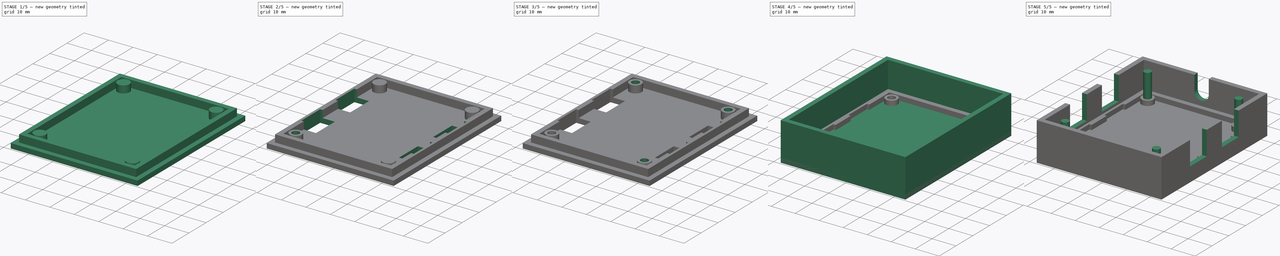
[diagram: build sequence overview — one tinted view per stage of 5, left to right]
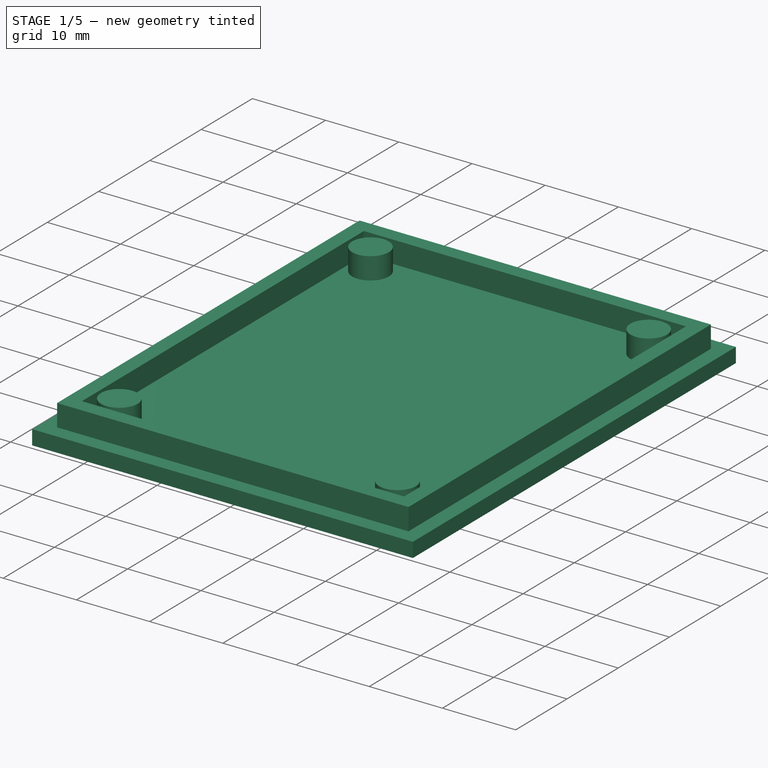
[diagram: stage 1 of 5 — iso view after this stage's code; geometry added in this stage tinted green]
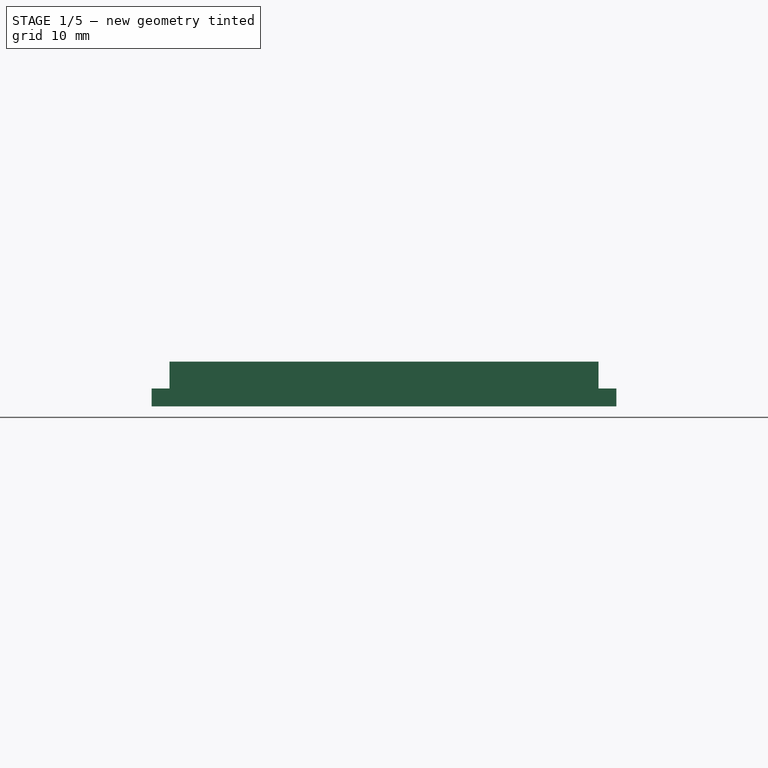
[diagram: stage 1 of 5 — front view after this stage's code; geometry added in this stage tinted green]
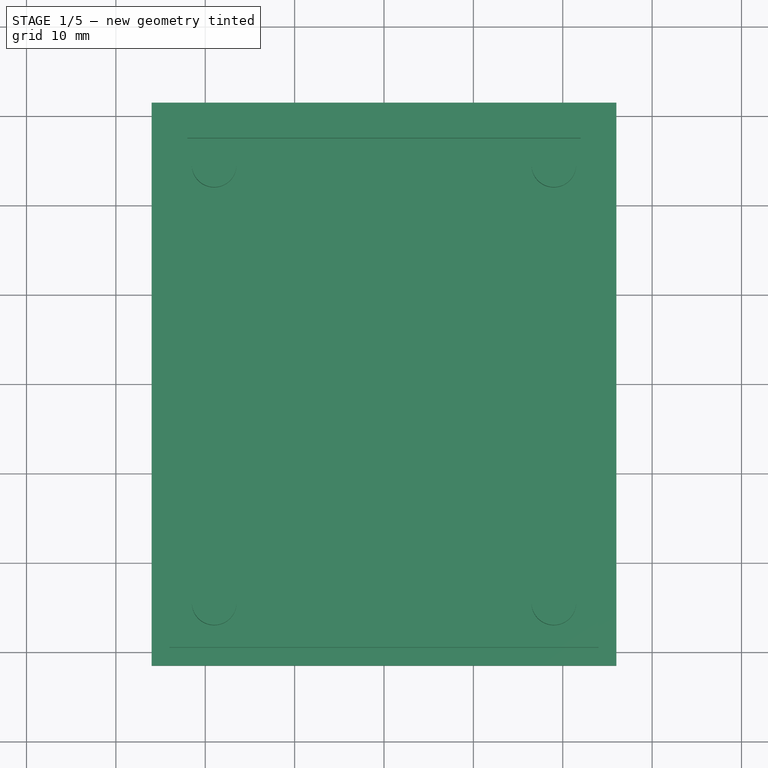
[diagram: stage 1 of 5 — top view after this stage's code; geometry added in this stage tinted green]
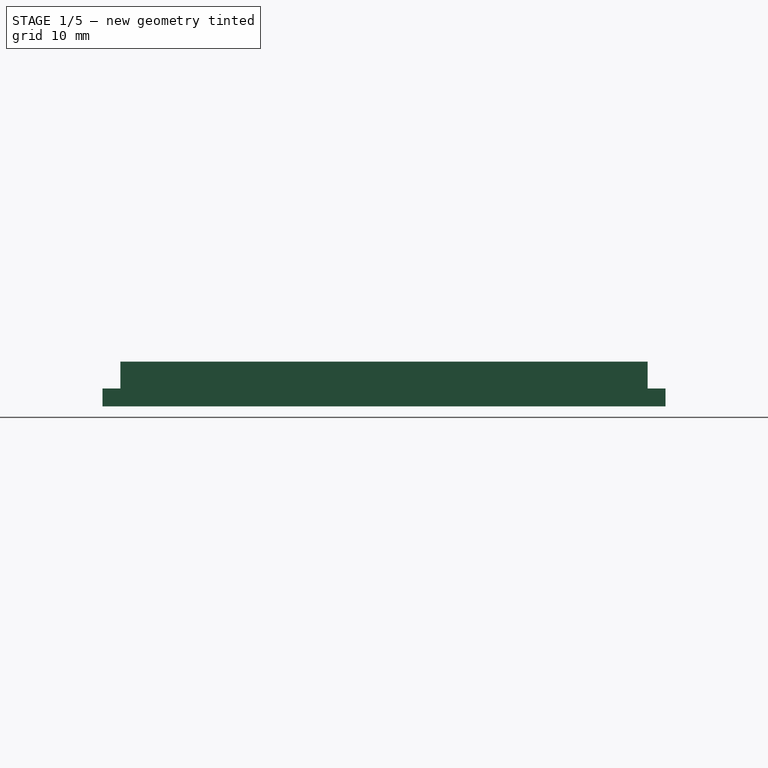
[diagram: stage 1 of 5 — right view after this stage's code; geometry added in this stage tinted green]
FCSTD DOCUMENT  (FreeCAD 0.19R23578 (Git))
Label: breakout_box
License: All rights reserved
LicenseURL: http://en.wikipedia.org/wiki/All_rights_reserved
objects: Sketcher::SketchObject×13, PartDesign::Pocket×7, PartDesign::Pad×6, PartDesign::Hole×6, PartDesign::Body×2
note: 53 computed .brp shape members not serialized (recipe doc carries the construction recipe); baked Part::Feature solids carry a one-line shape summary decoded from their .brp

FEATURE [PartDesign::Body] Body
  Group = -> [Sketch,Pad,Sketch001,Pocket,Sketch002,Pad001,Sketch003,Pocket001,Sketch004,Pocket002,Sketch005,Pocket003,Sketch006,Pocket004,Sketch007,Pad002]
  Origin = -> Origin
  Tip = -> Pad002
FEATURE [Sketcher::SketchObject] Sketch008
  MapMode = 5
  Support = -> [XY_Plane001]
  sketch-geometry (4):
    g0: LineSegment StartX=-26 StartY=31.5 StartZ=0 EndX=26 EndY=31.5 EndZ=0
    g1: LineSegment StartX=26 StartY=31.5 StartZ=0 EndX=26 EndY=-31.5 EndZ=0
    g2: LineSegment StartX=26 StartY=-31.5 StartZ=0 EndX=-26 EndY=-31.5 EndZ=0
    g3: LineSegment StartX=-26 StartY=-31.5 StartZ=0 EndX=-26 EndY=31.5 EndZ=0
  constraints (10):
    c: Coincident(g0,g1)
    c: Coincident(g1,g2)
    c: Coincident(g2,g3)
    c: Coincident(g3,g0)
    c: Horizontal(g2)
    c: Vertical(g1)
    c: DistanceX(g0,g0) = 52
    c: DistanceY(g3,g3) = 63
    c: Symmetric(g0,g0,g-2)
    c: Symmetric(g0,g2,g-1)
FEATURE [PartDesign::Pad] Pad003
  Direction = (1,1,1)
  Length = 2
  Length2 = 100
  Profile = -> Sketch008
  Type = 0
FEATURE [Sketcher::SketchObject] Sketch009
  ExternalGeometry = -> [Pad003]
  MapMode = 5
  Support = -> [XY_Plane001]
  sketch-geometry (4):
    g0: LineSegment StartX=-24 StartY=29.5 StartZ=0 EndX=24 EndY=29.5 EndZ=0
    g1: LineSegment StartX=24 StartY=29.5 StartZ=0 EndX=24 EndY=-29.5 EndZ=0
    g2: LineSegment StartX=24 StartY=-29.5 StartZ=0 EndX=-24 EndY=-29.5 EndZ=0
    g3: LineSegment StartX=-24 StartY=-29.5 StartZ=0 EndX=-24 EndY=29.5 EndZ=0
  constraints (12):
    c: Coincident(g0,g1)
    c: Coincident(g1,g2)
    c: Coincident(g2,g3)
    c: Coincident(g3,g0)
    c: Horizontal(g0)
    c: Horizontal(g2)
    c: Vertical(g1)
    c: Vertical(g3)
    c: DistanceY(g0,g-4) = 2
    c: DistanceY(g-6,g1) = 2
    c: DistanceX(g-6,g2) = 2
    c: DistanceX(g1,g-6) = 2
FEATURE [PartDesign::Pad] Pad004
  BaseFeature = -> Pad003
  Direction = (0,0,1)
  Length = 5
  Length2 = 100
  Profile = -> Sketch009
  Type = 0
FEATURE [Sketcher::SketchObject] Sketch010
  ExternalGeometry = -> [Pad004]
  MapMode = 5
  Placement = pos=(0,0,5) rot=(0,0,1;0rad)
  Support = -> [Pad004]
  sketch-geometry (4):
    g0: LineSegment StartX=-22 StartY=27.5 StartZ=0 EndX=22 EndY=27.5 EndZ=0
    g1: LineSegment StartX=22 StartY=27.5 StartZ=0 EndX=22 EndY=-27.5 EndZ=0
    g2: LineSegment StartX=22 StartY=-27.5 StartZ=0 EndX=-22 EndY=-27.5 EndZ=0
    g3: LineSegment StartX=-22 StartY=-27.5 StartZ=0 EndX=-22 EndY=27.5 EndZ=0
  constraints (12):
    c: Coincident(g0,g1)
    c: Coincident(g1,g2)
    c: Coincident(g2,g3)
    c: Coincident(g3,g0)
    c: Horizontal(g0)
    c: Horizontal(g2)
    c: Vertical(g1)
    c: Vertical(g3)
    c: DistanceY(g-6,g2) = 2
    c: DistanceY(g0,g-4) = 2
    c: DistanceX(g-4,g0) = 2
    c: DistanceX(g0,g-5) = 2
FEATURE [PartDesign::Pocket] Pocket005
  BaseFeature = -> Pad004
  Length = 3
  Length2 = 100
  Profile = -> Sketch010
  Type = 0
FEATURE [Sketcher::SketchObject] Sketch011
  ExternalGeometry = -> [Pocket005]
  MapMode = 5
  Placement = pos=(0,0,2) rot=(0,0,1;0rad)
  Support = -> [Pocket005]
  sketch-geometry (4):
    g0: Circle CenterX=-19 CenterY=24.5 CenterZ=0 NormalX=0 NormalY=0 NormalZ=1 AngleXU=0 Radius=2.5
    g1: Circle CenterX=19 CenterY=24.5 CenterZ=0 NormalX=0 NormalY=0 NormalZ=1 AngleXU=0 Radius=2.5
    g2: Circle CenterX=19 CenterY=-24.5 CenterZ=0 NormalX=0 NormalY=0 NormalZ=1 AngleXU=0 Radius=2.5
    g3: Circle CenterX=-19 CenterY=-24.5 CenterZ=0 NormalX=0 NormalY=0 NormalZ=1 AngleXU=0 Radius=2.5
  constraints (12):
    c: Diameter(g0) = 5
    c: Diameter(g1) = 5
    c: Diameter(g2) = 5
    c: Diameter(g3) = 5
    c: DistanceY(g0,g-6) = 5
    c: DistanceY(g1,g-4) = 5
    c: DistanceY(g-5,g2) = 5
    c: DistanceY(g-6,g3) = 5
    c: DistanceX(g-6,g0) = 5
    c: DistanceX(g1,g-4) = 5
    c: DistanceX(g2,g-5) = 5
    c: DistanceX(g-6,g3) = 5
FEATURE [PartDesign::Pad] Pad005
  BaseFeature = -> Pocket005
  Direction = (1,1,1)
  Length = 3
  Length2 = 100
  Profile = -> Sketch011
  Type = 0
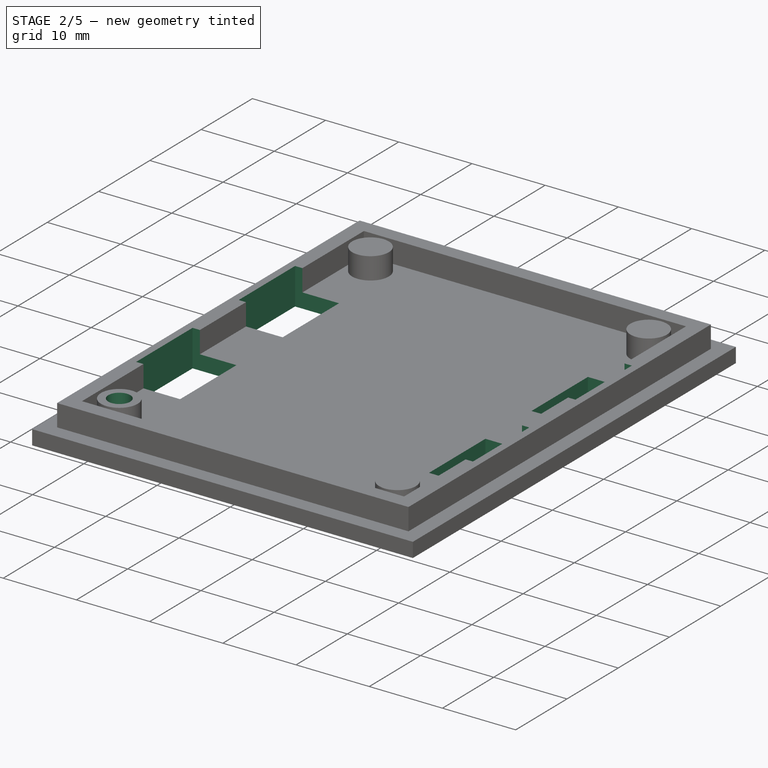
[diagram: stage 2 of 5 — iso view after this stage's code; geometry added in this stage tinted green]
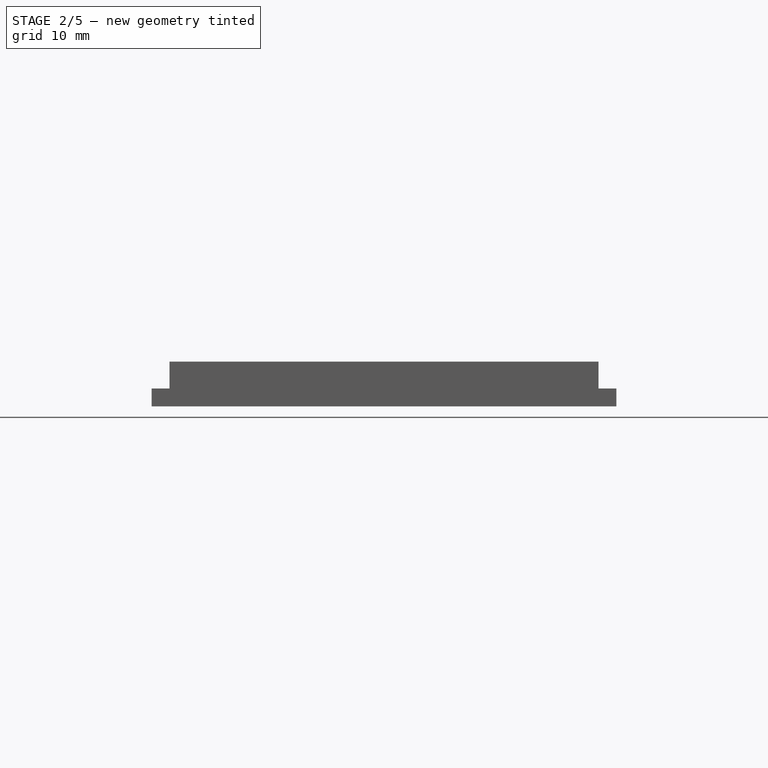
[diagram: stage 2 of 5 — front view after this stage's code; geometry added in this stage tinted green]
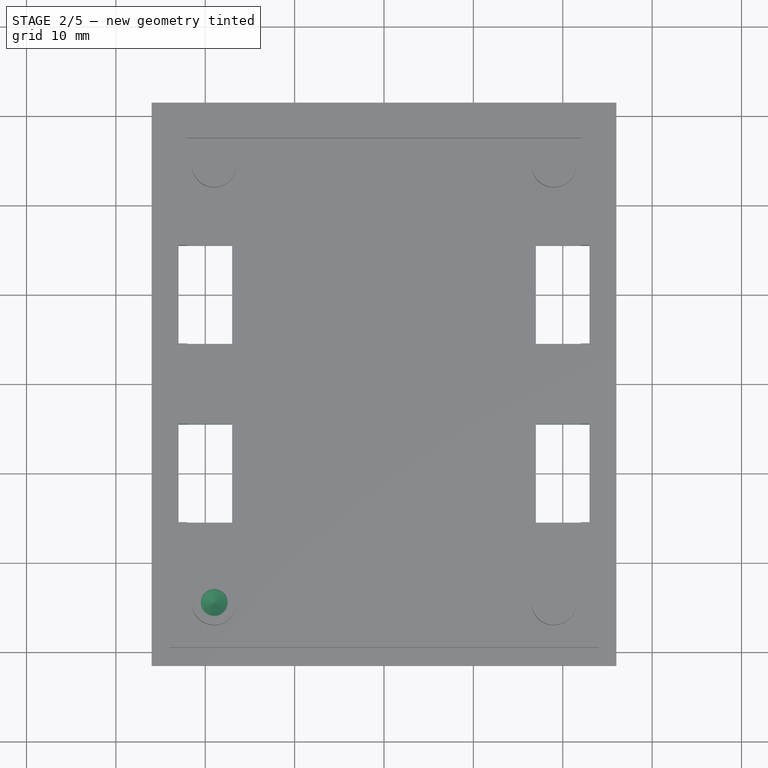
[diagram: stage 2 of 5 — top view after this stage's code; geometry added in this stage tinted green]
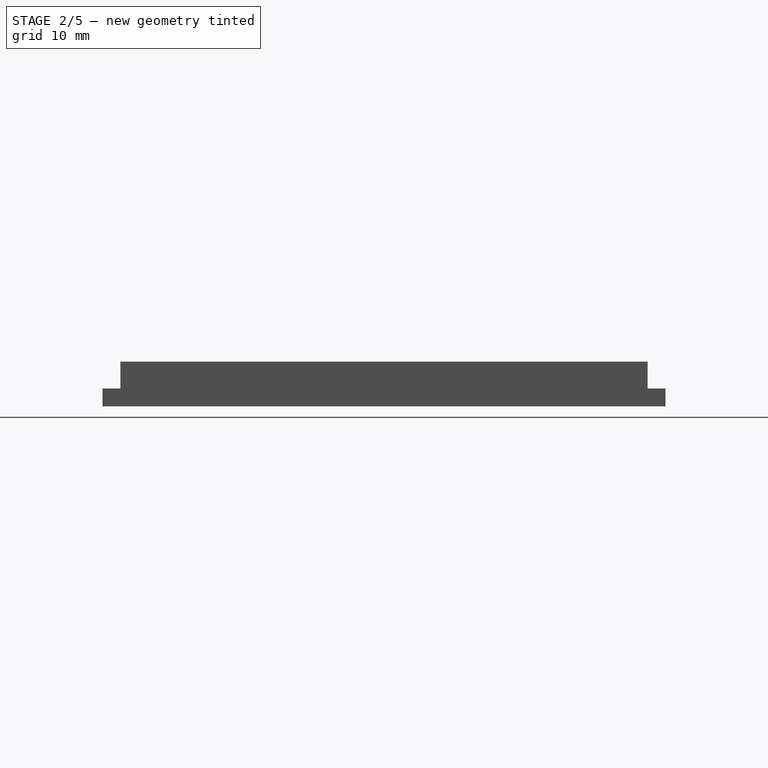
[diagram: stage 2 of 5 — right view after this stage's code; geometry added in this stage tinted green]
FEATURE [PartDesign::Hole] Hole
  BaseFeature = -> Pad005
  Depth = 3
  DepthType = 0
  Diameter = 3
  DrillPoint = 1
  DrillPointAngle = 118
  HoleCutCountersinkAngle = 90
  HoleCutDepth = 0
  HoleCutDiameter = 0
  HoleCutType = 0
  ModelActualThread = false
  Profile = -> Pad005 [Face23]
  Tapered = false
  TaperedAngle = 90
  ThreadAngle = 0
  ThreadClass = 0
  ThreadCutOffInner = 0
  ThreadCutOffOuter = 0
  ThreadDirection = 0
  ThreadFit = 0
  ThreadPitch = 0
  ThreadSize = 0
  ThreadType = 0
  Threaded = false
FEATURE [PartDesign::Hole] Hole001
  BaseFeature = -> Hole
  Depth = 3
  DepthType = 0
  Diameter = 3
  DrillPoint = 1
  DrillPointAngle = 118
  HoleCutCountersinkAngle = 90
  HoleCutDepth = 0
  HoleCutDiameter = 0
  HoleCutType = 0
  ModelActualThread = false
  Profile = -> Hole [Face12]
  Tapered = false
  TaperedAngle = 90
  ThreadAngle = 0
  ThreadClass = 0
  ThreadCutOffInner = 0
  ThreadCutOffOuter = 0
  ThreadDirection = 0
  ThreadFit = 0
  ThreadPitch = 0
  ThreadSize = 0
  ThreadType = 0
  Threaded = false
FEATURE [PartDesign::Hole] Hole002
  BaseFeature = -> Hole001
  Depth = 3
  DepthType = 0
  Diameter = 3
  DrillPoint = 1
  DrillPointAngle = 118
  HoleCutCountersinkAngle = 90
  HoleCutDepth = 0
  HoleCutDiameter = 0
  HoleCutType = 0
  ModelActualThread = false
  Profile = -> Hole001 [Face12]
  Tapered = false
  TaperedAngle = 90
  ThreadAngle = 0
  ThreadClass = 0
  ThreadCutOffInner = 0
  ThreadCutOffOuter = 0
  ThreadDirection = 0
  ThreadFit = 0
  ThreadPitch = 0
  ThreadSize = 0
  ThreadType = 0
  Threaded = false
FEATURE [Sketcher::SketchObject] Sketch012
  MapMode = 5
  Placement = pos=(0,0,0) rot=(1,0,0;3.14159rad)
  sketch-geometry (16):
    g0: LineSegment StartX=-23 StartY=15.5 StartZ=0 EndX=-17 EndY=15.5 EndZ=0
    g1: LineSegment StartX=-17 StartY=15.5 StartZ=0 EndX=-17 EndY=4.5 EndZ=0
    g2: LineSegment StartX=-17 StartY=4.5 StartZ=0 EndX=-23 EndY=4.5 EndZ=0
    g3: LineSegment StartX=-23 StartY=4.5 StartZ=0 EndX=-23 EndY=15.5 EndZ=0
    g4: LineSegment StartX=17 StartY=15.5 StartZ=0 EndX=23 EndY=15.5 EndZ=0
    g5: LineSegment StartX=23 StartY=15.5 StartZ=0 EndX=23 EndY=4.5 EndZ=0
    g6: LineSegment StartX=23 StartY=4.5 StartZ=0 EndX=17 EndY=4.5 EndZ=0
    g7: LineSegment StartX=17 StartY=4.5 StartZ=0 EndX=17 EndY=15.5 EndZ=0
    g8: LineSegment StartX=-23 StartY=-4.5 StartZ=0 EndX=-17 EndY=-4.5 EndZ=0
    g9: LineSegment StartX=-17 StartY=-4.5 StartZ=0 EndX=-17 EndY=-15.5 EndZ=0
    g10: LineSegment StartX=-17 StartY=-15.5 StartZ=0 EndX=-23 EndY=-15.5 EndZ=0
    g11: LineSegment StartX=-23 StartY=-15.5 StartZ=0 EndX=-23 EndY=-4.5 EndZ=0
    g12: LineSegment StartX=17 StartY=-4.5 StartZ=0 EndX=23 EndY=-4.5 EndZ=0
    g13: LineSegment StartX=23 StartY=-4.5 StartZ=0 EndX=23 EndY=-15.5 EndZ=0
    g14: LineSegment StartX=23 StartY=-15.5 StartZ=0 EndX=17 EndY=-15.5 EndZ=0
    g15: LineSegment StartX=17 StartY=-15.5 StartZ=0 EndX=17 EndY=-4.5 EndZ=0
  constraints (40):
    c: Coincident(g0,g1)
    c: Coincident(g1,g2)
    c: Coincident(g2,g3)
    c: Coincident(g3,g0)
    c: Horizontal(g0)
    c: Horizontal(g2)
    c: Vertical(g1)
    c: Vertical(g3)
    c: Coincident(g4,g5)
    c: Coincident(g5,g6)
    c: Coincident(g6,g7)
    c: Coincident(g7,g4)
    c: Horizontal(g4)
    c: Horizontal(g6)
    c: Vertical(g5)
    c: Vertical(g7)
    c: Coincident(g8,g9)
    c: Coincident(g9,g10)
    c: Coincident(g10,g11)
    c: Coincident(g11,g8)
    c: Horizontal(g8)
    c: Horizontal(g10)
    c: Vertical(g9)
    c: Vertical(g11)
    c: Coincident(g12,g13)
    c: Coincident(g13,g14)
    c: Coincident(g14,g15)
    c: Coincident(g15,g12)
    c: Horizontal(g12)
    c: Horizontal(g14)
    c: Vertical(g13)
    c: Vertical(g15)
    c: DistanceX(g4,g4) = 6
    c: DistanceX(g0,g0) = 6
    c: DistanceX(g8,g8) = 6
    c: DistanceX(g12,g12) = 6
    c: DistanceY(g3,g3) = 11
    c: DistanceY(g5,g5) = 11
    c: DistanceY(g13,g13) = 11
    c: DistanceY(g9,g9) = 11
FEATURE [PartDesign::Pocket] Pocket006
  BaseFeature = -> Hole002
  Length = 10
  Length2 = 100
  Profile = -> Sketch012
  Type = 0
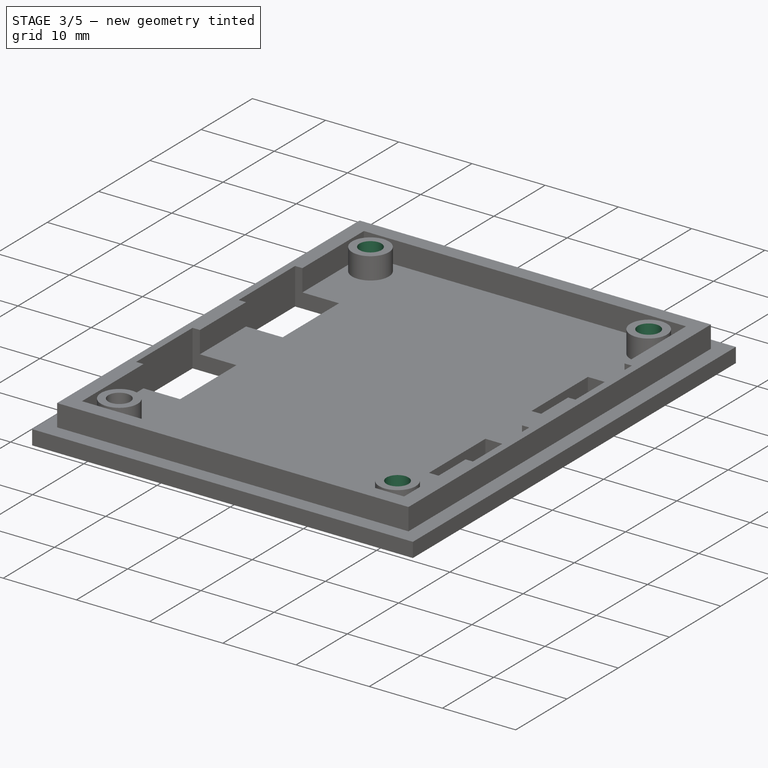
[diagram: stage 3 of 5 — iso view after this stage's code; geometry added in this stage tinted green]
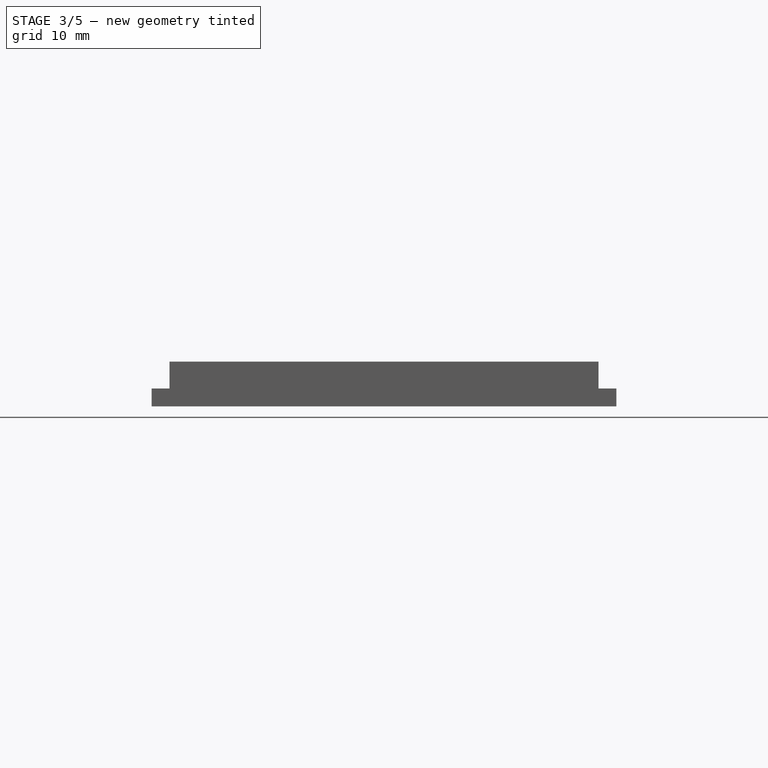
[diagram: stage 3 of 5 — front view after this stage's code; geometry added in this stage tinted green]
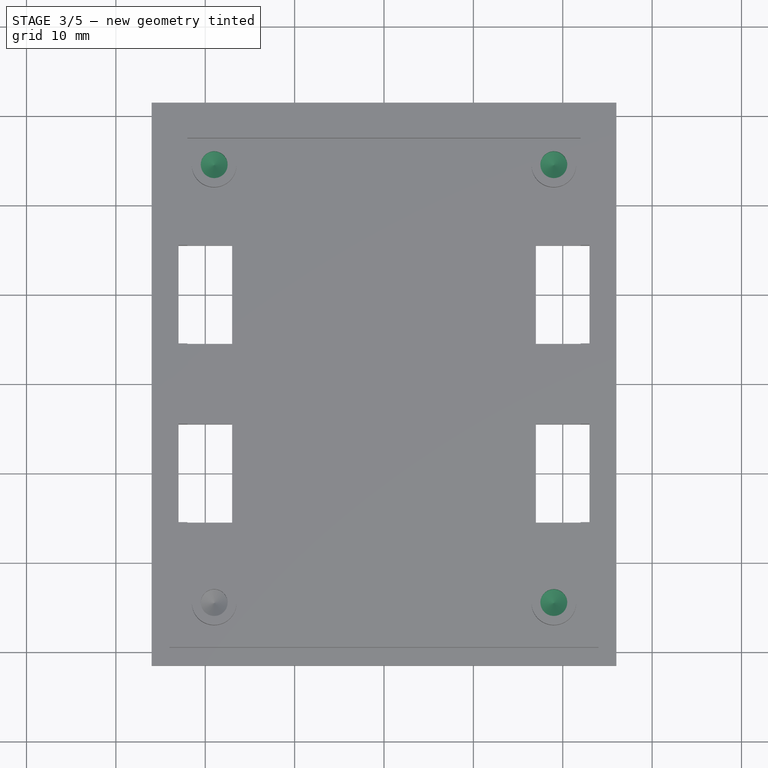
[diagram: stage 3 of 5 — top view after this stage's code; geometry added in this stage tinted green]
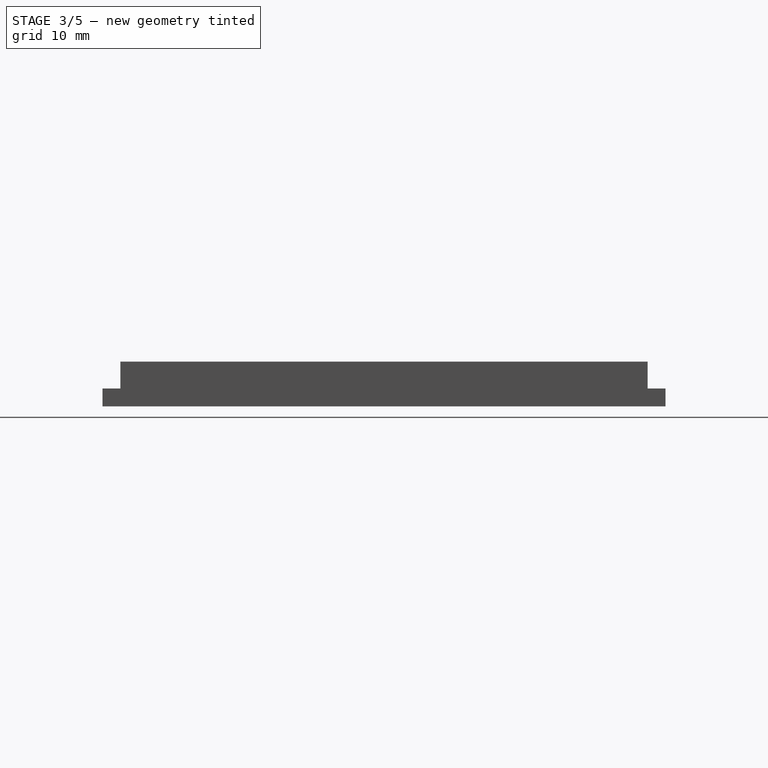
[diagram: stage 3 of 5 — right view after this stage's code; geometry added in this stage tinted green]
FEATURE [PartDesign::Hole] Hole004
  BaseFeature = -> Pocket006
  Depth = 3
  DepthType = 0
  Diameter = 3
  DrillPoint = 1
  DrillPointAngle = 118
  HoleCutCountersinkAngle = 90
  HoleCutDepth = 0
  HoleCutDiameter = 0
  HoleCutType = 0
  ModelActualThread = false
  Profile = -> Hole [Face25]
  Tapered = false
  TaperedAngle = 90
  ThreadAngle = 0
  ThreadClass = 0
  ThreadCutOffInner = 0
  ThreadCutOffOuter = 0
  ThreadDirection = 0
  ThreadFit = 0
  ThreadPitch = 0
  ThreadSize = 0
  ThreadType = 0
  Threaded = false
FEATURE [PartDesign::Hole] Hole005
  BaseFeature = -> Hole004
  Depth = 3
  DepthType = 0
  Diameter = 3
  DrillPoint = 1
  DrillPointAngle = 118
  HoleCutCountersinkAngle = 90
  HoleCutDepth = 0
  HoleCutDiameter = 0
  HoleCutType = 0
  ModelActualThread = false
  Profile = -> Hole002 [Face24]
  Tapered = false
  TaperedAngle = 90
  ThreadAngle = 0
  ThreadClass = 0
  ThreadCutOffInner = 0
  ThreadCutOffOuter = 0
  ThreadDirection = 0
  ThreadFit = 0
  ThreadPitch = 0
  ThreadSize = 0
  ThreadType = 0
  Threaded = false
FEATURE [PartDesign::Hole] Hole006
  BaseFeature = -> Hole005
  Depth = 3
  DepthType = 0
  Diameter = 3
  DrillPoint = 1
  DrillPointAngle = 118
  HoleCutCountersinkAngle = 90
  HoleCutDepth = 0
  HoleCutDiameter = 0
  HoleCutType = 0
  ModelActualThread = false
  Profile = -> Hole005 [Face42]
  Tapered = false
  TaperedAngle = 90
  ThreadAngle = 0
  ThreadClass = 0
  ThreadCutOffInner = 0
  ThreadCutOffOuter = 0
  ThreadDirection = 0
  ThreadFit = 0
  ThreadPitch = 0
  ThreadSize = 0
  ThreadType = 0
  Threaded = false
FEATURE [PartDesign::Body] Body001  label="Lid"
  Group = -> [Sketch008,Pad003,Sketch009,Pad004,Sketch010,Pocket005,Sketch011,Pad005,Hole,Hole001,Hole002,Sketch012,Pocket006,Hole004,Hole005,Hole006]
  Origin = -> Origin001
  Tip = -> Hole006
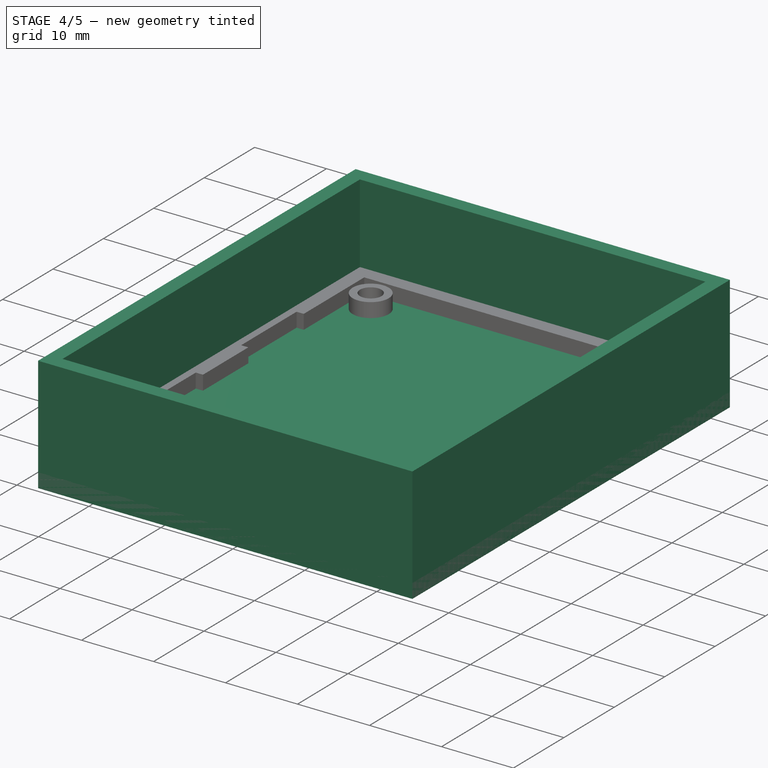
[diagram: stage 4 of 5 — iso view after this stage's code; geometry added in this stage tinted green]
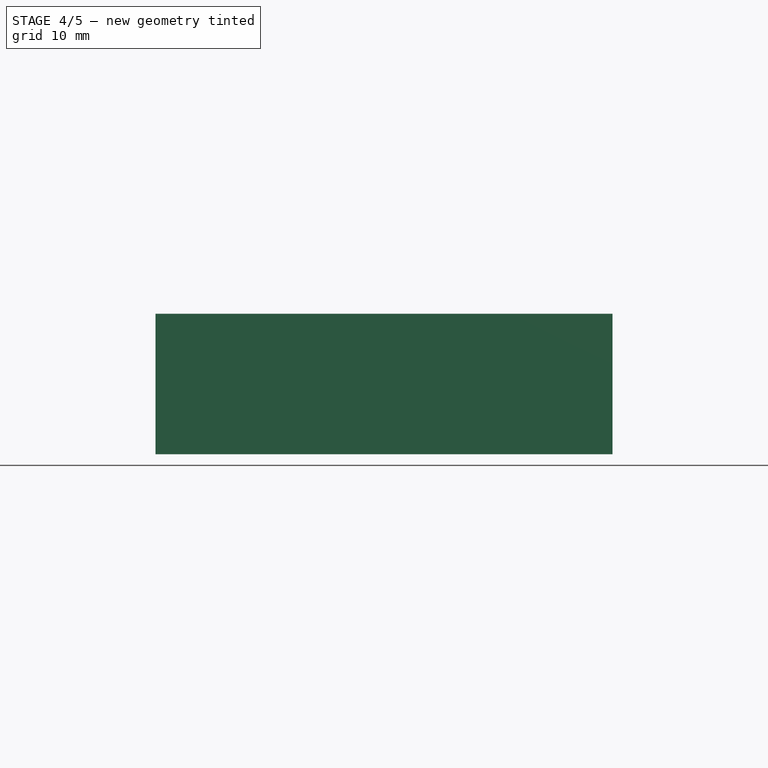
[diagram: stage 4 of 5 — front view after this stage's code; geometry added in this stage tinted green]
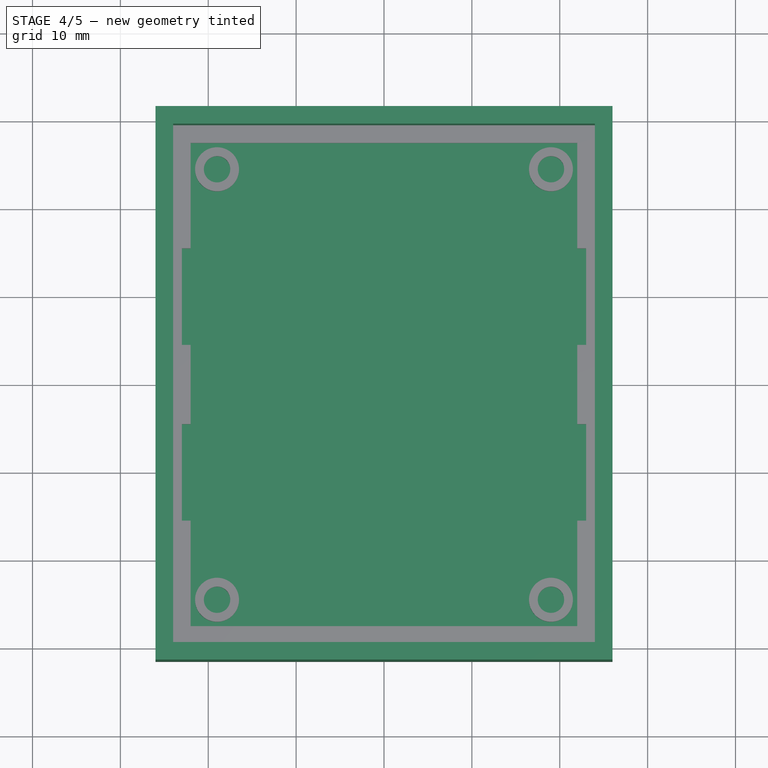
[diagram: stage 4 of 5 — top view after this stage's code; geometry added in this stage tinted green]
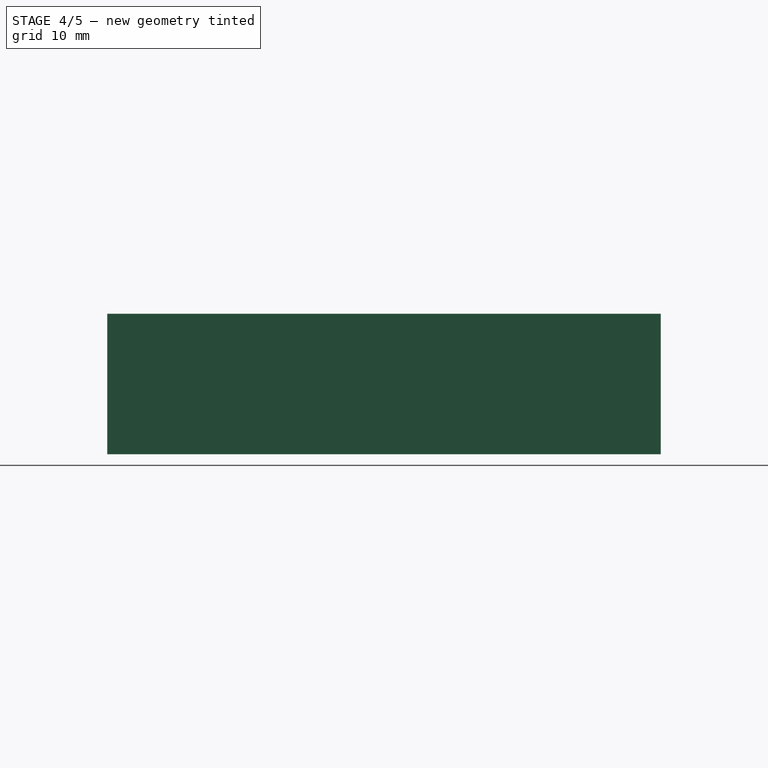
[diagram: stage 4 of 5 — right view after this stage's code; geometry added in this stage tinted green]
FEATURE [Sketcher::SketchObject] Sketch
  MapMode = 5
  Support = -> [XY_Plane]
  sketch-geometry (4):
    g0: LineSegment StartX=-26 StartY=31.5 StartZ=0 EndX=26 EndY=31.5 EndZ=0
    g1: LineSegment StartX=26 StartY=31.5 StartZ=0 EndX=26 EndY=-31.5 EndZ=0
    g2: LineSegment StartX=26 StartY=-31.5 StartZ=0 EndX=-26 EndY=-31.5 EndZ=0
    g3: LineSegment StartX=-26 StartY=-31.5 StartZ=0 EndX=-26 EndY=31.5 EndZ=0
  constraints (10):
    c: Coincident(g0,g1)
    c: Coincident(g1,g2)
    c: Coincident(g2,g3)
    c: Coincident(g3,g0)
    c: Horizontal(g2)
    c: Vertical(g1)
    c: Symmetric(g0,g0,g-2)
    c: Symmetric(g2,g0,g-1)
    c: DistanceY(g3,g3) = 63
    c: DistanceX(g0,g0) = 52
FEATURE [PartDesign::Pad] Pad
  Direction = (1,1,1)
  Length = 16
  Length2 = 100
  Profile = -> Sketch
  Type = 0
FEATURE [Sketcher::SketchObject] Sketch001
  ExternalGeometry = -> [Pad]
  MapMode = 5
  Placement = pos=(0,0,16) rot=(0,0,1;0rad)
  Support = -> [Pad]
  sketch-geometry (4):
    g0: LineSegment StartX=-24 StartY=29.5 StartZ=0 EndX=24 EndY=29.5 EndZ=0
    g1: LineSegment StartX=24 StartY=29.5 StartZ=0 EndX=24 EndY=-29.5 EndZ=0
    g2: LineSegment StartX=24 StartY=-29.5 StartZ=0 EndX=-24 EndY=-29.5 EndZ=0
    g3: LineSegment StartX=-24 StartY=-29.5 StartZ=0 EndX=-24 EndY=29.5 EndZ=0
  constraints (12):
    c: Coincident(g0,g1)
    c: Coincident(g1,g2)
    c: Coincident(g2,g3)
    c: Coincident(g3,g0)
    c: Horizontal(g0)
    c: Horizontal(g2)
    c: Vertical(g1)
    c: Vertical(g3)
    c: DistanceY(g0,g-4) = 2
    c: DistanceY(g-6,g2) = 2
    c: DistanceX(g-4,g0) = 2
    c: DistanceX(g0,g-5) = 2
FEATURE [PartDesign::Pocket] Pocket
  BaseFeature = -> Pad
  Length = 13
  Length2 = 100
  Profile = -> Sketch001
  Type = 0
FEATURE [Sketcher::SketchObject] Sketch002
  ExternalGeometry = -> [Pocket]
  MapMode = 5
  Placement = pos=(0,0,3) rot=(0,0,1;0rad)
  Support = -> [Pocket]
  sketch-geometry (4):
    g0: LineSegment StartX=-24 StartY=29.5 StartZ=0 EndX=24 EndY=29.5 EndZ=0
    g1: LineSegment StartX=24 StartY=29.5 StartZ=0 EndX=24 EndY=-29.5 EndZ=0
    g2: LineSegment StartX=24 StartY=-29.5 StartZ=0 EndX=-24 EndY=-29.5 EndZ=0
    g3: LineSegment StartX=-24 StartY=-29.5 StartZ=0 EndX=-24 EndY=29.5 EndZ=0
  constraints (9):
    c: Coincident(g0,g1)
    c: Coincident(g1,g2)
    c: Coincident(g2,g3)
    c: Coincident(g3,g0)
    c: Horizontal(g2)
    c: Vertical(g3)
    c: Coincident(g0,g-4)
    c: Coincident(g0,g-5)
    c: Coincident(g1,g-6)
FEATURE [PartDesign::Pad] Pad001
  BaseFeature = -> Pocket
  Direction = (1,1,1)
  Length = 2
  Length2 = 100
  Profile = -> Sketch002
  Type = 0
FEATURE [Sketcher::SketchObject] Sketch003
  ExternalGeometry = -> [Pad001]
  MapMode = 5
  Placement = pos=(0,0,5) rot=(0,0,1;0rad)
  Support = -> [Pad001]
  sketch-geometry (4):
    g0: LineSegment StartX=-23 StartY=28.5 StartZ=0 EndX=23 EndY=28.5 EndZ=0
    g1: LineSegment StartX=23 StartY=28.5 StartZ=0 EndX=23 EndY=-28.5 EndZ=0
    g2: LineSegment StartX=23 StartY=-28.5 StartZ=0 EndX=-23 EndY=-28.5 EndZ=0
    g3: LineSegment StartX=-23 StartY=-28.5 StartZ=0 EndX=-23 EndY=28.5 EndZ=0
  constraints (12):
    c: Coincident(g0,g1)
    c: Coincident(g1,g2)
    c: Coincident(g2,g3)
    c: Coincident(g3,g0)
    c: Horizontal(g0)
    c: Horizontal(g2)
    c: Vertical(g1)
    c: Vertical(g3)
    c: DistanceY(g0,g-4) = 1
    c: DistanceY(g-6,g2) = 1
    c: DistanceX(g-6,g2) = 1
    c: DistanceX(g1,g-6) = 1
FEATURE [PartDesign::Pocket] Pocket001
  BaseFeature = -> Pad001
  Length = 2
  Length2 = 100
  Profile = -> Sketch003
  Type = 0
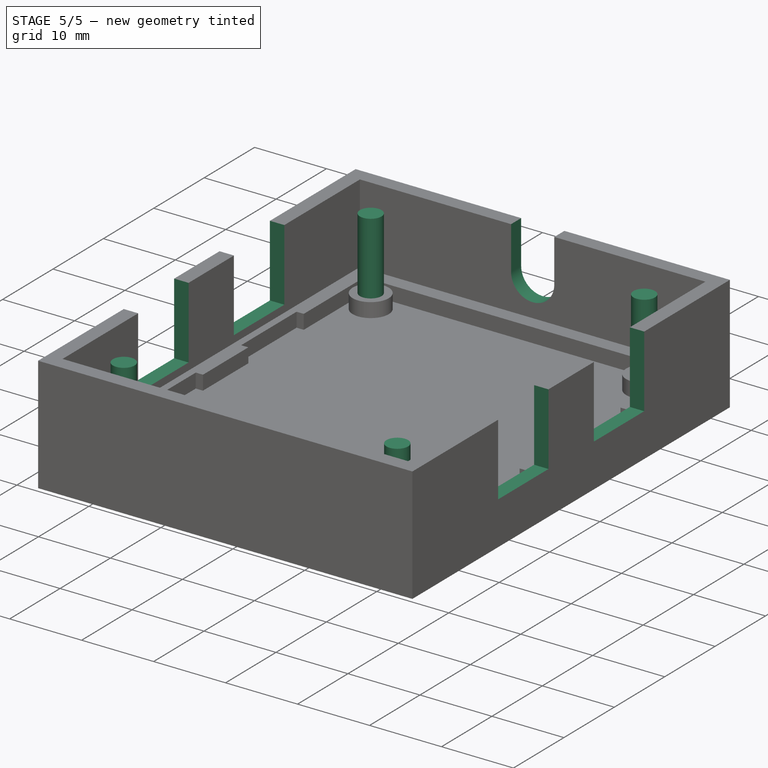
[diagram: stage 5 of 5 — iso view after this stage's code; geometry added in this stage tinted green]
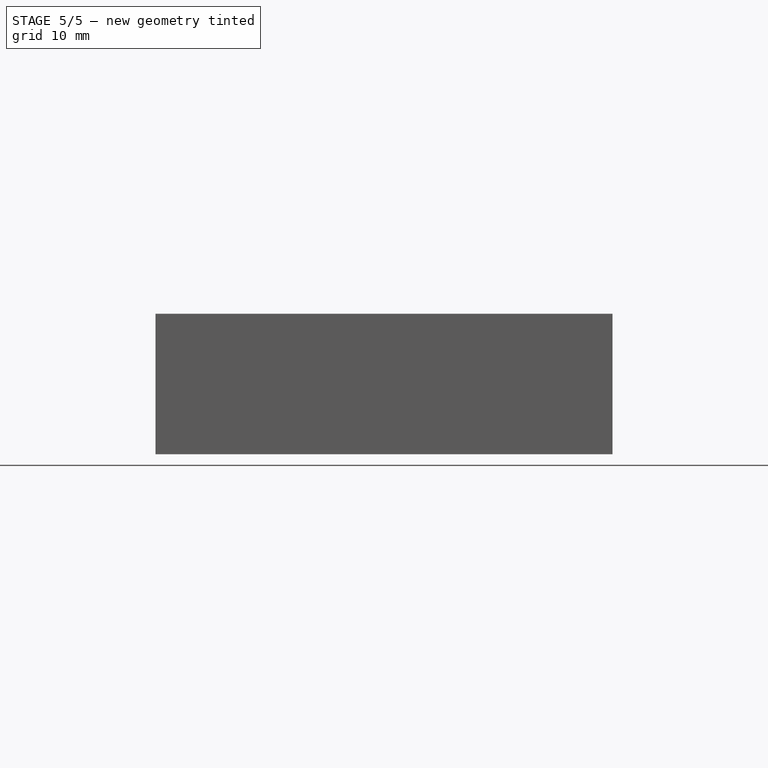
[diagram: stage 5 of 5 — front view after this stage's code; geometry added in this stage tinted green]
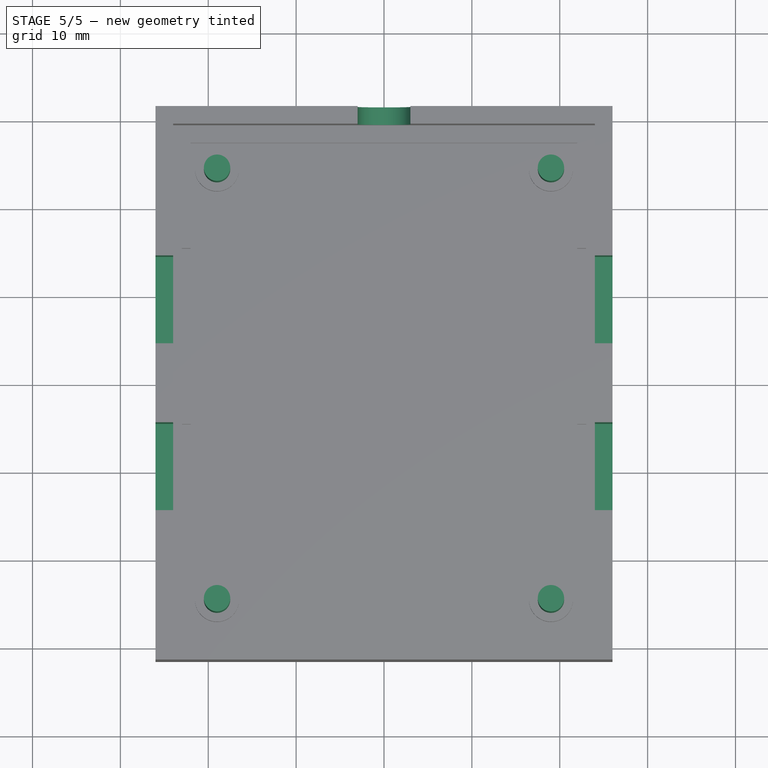
[diagram: stage 5 of 5 — top view after this stage's code; geometry added in this stage tinted green]
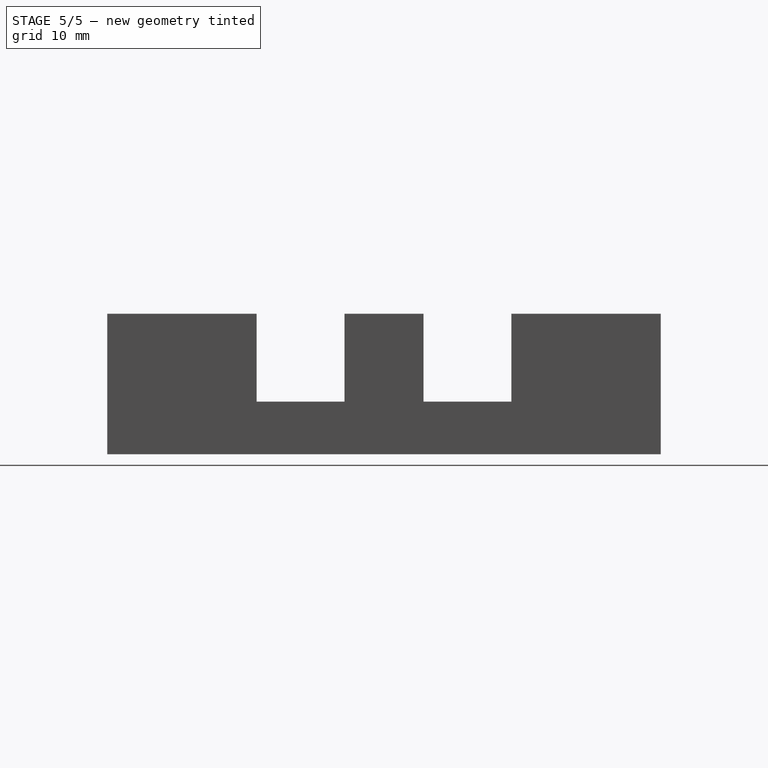
[diagram: stage 5 of 5 — right view after this stage's code; geometry added in this stage tinted green]
FEATURE [Sketcher::SketchObject] Sketch004
  ExternalGeometry = -> [Pocket001]
  MapMode = 5
  Placement = pos=(0,31.5,0) rot=(0,0.707107,0.707107;3.14159rad)
  Support = -> [Pocket001]
  sketch-geometry (4):
    g0: ArcOfCircle CenterX=3.927e-13 CenterY=16 CenterZ=0 NormalX=0 NormalY=0 NormalZ=1 AngleXU=0 Radius=3 StartAngle=-7.73e-14 EndAngle=3.14159
    g1: ArcOfCircle CenterX=-6.995e-13 CenterY=10 CenterZ=0 NormalX=0 NormalY=0 NormalZ=1 AngleXU=0 Radius=3 StartAngle=3.14159 EndAngle=6.28319
    g2: LineSegment StartX=-3 StartY=16 StartZ=0 EndX=-3 EndY=10 EndZ=0
    g3: LineSegment StartX=3 StartY=16 StartZ=0 EndX=3 EndY=10 EndZ=0
  constraints (11):
    c: Tangent(g0,g3)
    c: Tangent(g0,g2)
    c: Tangent(g2,g1)
    c: Tangent(g3,g1)
    c: Vertical(g2)
    c: PointOnObject(g0,g-3)
    c: Symmetric(g1,g1,g-2)
    c: Distance(g0,g0) = 6
    c: DistanceY(g-3,g-3) = 0
    c: DistanceY(g-3,g-3) = 0
    c: DistanceY(g1,g-5) = 6
FEATURE [PartDesign::Pocket] Pocket002
  BaseFeature = -> Pocket001
  Length = 5
  Length2 = 100
  Profile = -> Sketch004
  Type = 0
FEATURE [Sketcher::SketchObject] Sketch005
  ExternalGeometry = -> [Pocket002]
  MapMode = 5
  Placement = pos=(26,0,0) rot=(0.57735,0.57735,0.57735;2.0944rad)
  Support = -> [Pocket002]
  sketch-geometry (8):
    g0: LineSegment StartX=-14.5 StartY=16 StartZ=0 EndX=-4.5 EndY=16 EndZ=0
    g1: LineSegment StartX=-4.5 StartY=16 StartZ=0 EndX=-4.5 EndY=6 EndZ=0
    g2: LineSegment StartX=-4.5 StartY=6 StartZ=0 EndX=-14.5 EndY=6 EndZ=0
    g3: LineSegment StartX=-14.5 StartY=6 StartZ=0 EndX=-14.5 EndY=16 EndZ=0
    g4: LineSegment StartX=4.5 StartY=16 StartZ=0 EndX=14.5 EndY=16 EndZ=0
    g5: LineSegment StartX=14.5 StartY=16 StartZ=0 EndX=14.5 EndY=6 EndZ=0
    g6: LineSegment StartX=14.5 StartY=6 StartZ=0 EndX=4.5 EndY=6 EndZ=0
    g7: LineSegment StartX=4.5 StartY=6 StartZ=0 EndX=4.5 EndY=16 EndZ=0
  constraints (24):
    c: Coincident(g0,g1)
    c: Coincident(g1,g2)
    c: Coincident(g2,g3)
    c: Coincident(g3,g0)
    c: Horizontal(g0)
    c: Horizontal(g2)
    c: Vertical(g1)
    c: Vertical(g3)
    c: DistanceY(g0,g-4) = 0
    c: DistanceY(g-6,g2) = 6
    c: DistanceX(g2,g2) = 10
    c: DistanceX(g-6,g2) = 17
    c: Coincident(g4,g5)
    c: Coincident(g5,g6)
    c: Coincident(g6,g7)
    c: Coincident(g7,g4)
    c: Horizontal(g4)
    c: Horizontal(g6)
    c: Vertical(g5)
    c: Vertical(g7)
    c: DistanceX(g6,g6) = 10
    c: DistanceX(g5,g-6) = 17
    c: DistanceY(g-6,g5) = 6
    c: DistanceY(g4,g-5) = 0
FEATURE [PartDesign::Pocket] Pocket003
  BaseFeature = -> Pocket002
  Length = 5
  Length2 = 100
  Profile = -> Sketch005
  Type = 0
FEATURE [Sketcher::SketchObject] Sketch006
  ExternalGeometry = -> [Pocket003]
  MapMode = 5
  Placement = pos=(-26,0,0) rot=(0.57735,-0.57735,-0.57735;2.0944rad)
  Support = -> [Pocket003]
  sketch-geometry (8):
    g0: LineSegment StartX=-14.5 StartY=16 StartZ=0 EndX=-4.5 EndY=16 EndZ=0
    g1: LineSegment StartX=-4.5 StartY=16 StartZ=0 EndX=-4.5 EndY=6 EndZ=0
    g2: LineSegment StartX=-4.5 StartY=6 StartZ=0 EndX=-14.5 EndY=6 EndZ=0
    g3: LineSegment StartX=-14.5 StartY=6 StartZ=0 EndX=-14.5 EndY=16 EndZ=0
    g4: LineSegment StartX=4.5 StartY=16 StartZ=0 EndX=14.5 EndY=16 EndZ=0
    g5: LineSegment StartX=14.5 StartY=16 StartZ=0 EndX=14.5 EndY=6 EndZ=0
    g6: LineSegment StartX=14.5 StartY=6 StartZ=0 EndX=4.5 EndY=6 EndZ=0
    g7: LineSegment StartX=4.5 StartY=6 StartZ=0 EndX=4.5 EndY=16 EndZ=0
  constraints (24):
    c: Coincident(g0,g1)
    c: Coincident(g1,g2)
    c: Coincident(g2,g3)
    c: Coincident(g3,g0)
    c: Horizontal(g0)
    c: Horizontal(g2)
    c: Vertical(g1)
    c: Vertical(g3)
    c: Coincident(g4,g5)
    c: Coincident(g5,g6)
    c: Coincident(g6,g7)
    c: Coincident(g7,g4)
    c: Horizontal(g4)
    c: Horizontal(g6)
    c: Vertical(g5)
    c: Vertical(g7)
    c: DistanceX(g2,g2) = 10
    c: DistanceX(g6,g6) = 10
    c: DistanceY(g-6,g2) = 6
    c: DistanceY(g-6,g5) = 6
    c: DistanceY(g0,g-4) = 0
    c: DistanceY(g4,g-5) = 0
    c: DistanceX(g4,g-5) = 17
    c: DistanceX(g-4,g0) = 17
FEATURE [PartDesign::Pocket] Pocket004
  BaseFeature = -> Pocket003
  Length = 5
  Length2 = 100
  Profile = -> Sketch006
  Type = 0
FEATURE [Sketcher::SketchObject] Sketch007
  ExternalGeometry = -> [Pocket004]
  MapMode = 2
  Placement = pos=(0,0,3) rot=(0,0,1;0rad)
  sketch-geometry (4):
    g0: Circle CenterX=-19 CenterY=24.5 CenterZ=0 NormalX=0 NormalY=0 NormalZ=1 AngleXU=0 Radius=1.5
    g1: Circle CenterX=19 CenterY=24.5 CenterZ=0 NormalX=0 NormalY=0 NormalZ=1 AngleXU=0 Radius=1.5
    g2: Circle CenterX=-19 CenterY=-24.5 CenterZ=0 NormalX=0 NormalY=0 NormalZ=1 AngleXU=0 Radius=1.5
    g3: Circle CenterX=19 CenterY=-24.5 CenterZ=0 NormalX=0 NormalY=0 NormalZ=1 AngleXU=0 Radius=1.5
  constraints (4):
    c: Diameter(g2) = 3
    c: Diameter(g0) = 3
    c: Diameter(g1) = 3
    c: Diameter(g3) = 3
FEATURE [PartDesign::Pad] Pad002
  BaseFeature = -> Pocket004
  Direction = (1,1,1)
  Length = 12
  Length2 = 100
  Profile = -> Sketch007
  Type = 0
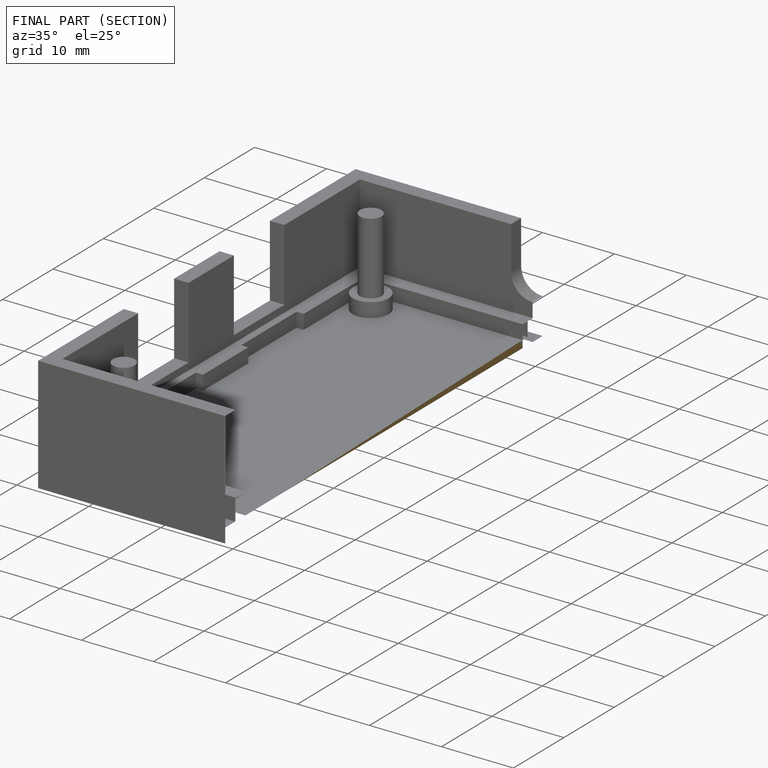
[diagram: finished part — half-section view (interior)]
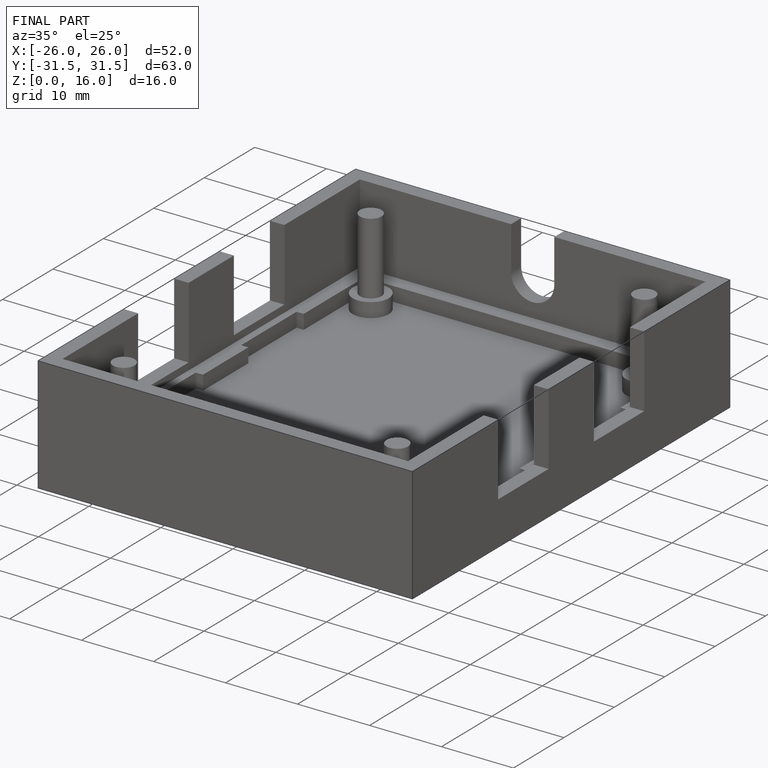
[diagram: finished part — iso view with bounding-box wireframe]
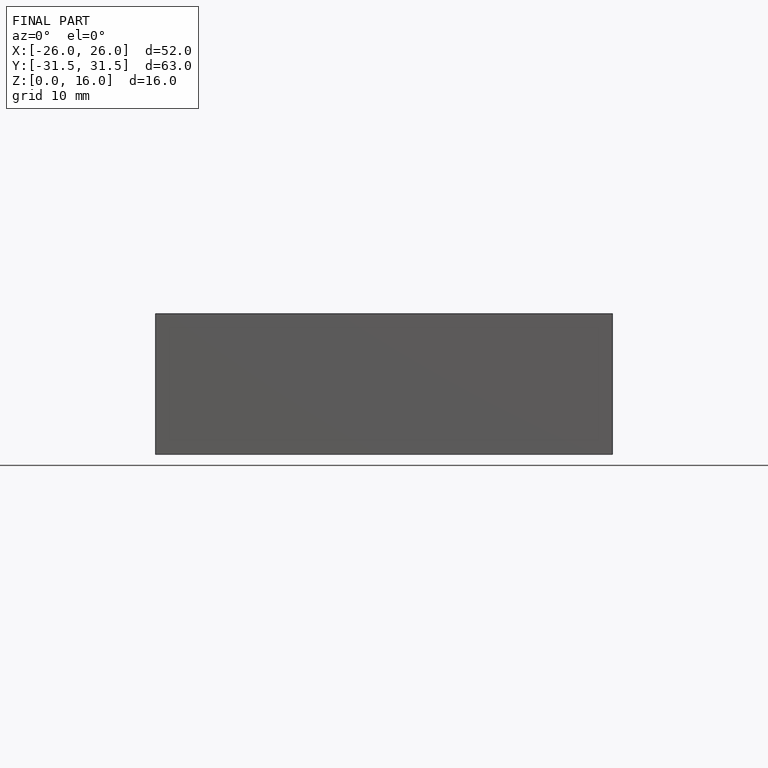
[diagram: finished part — front view with bounding-box wireframe]
